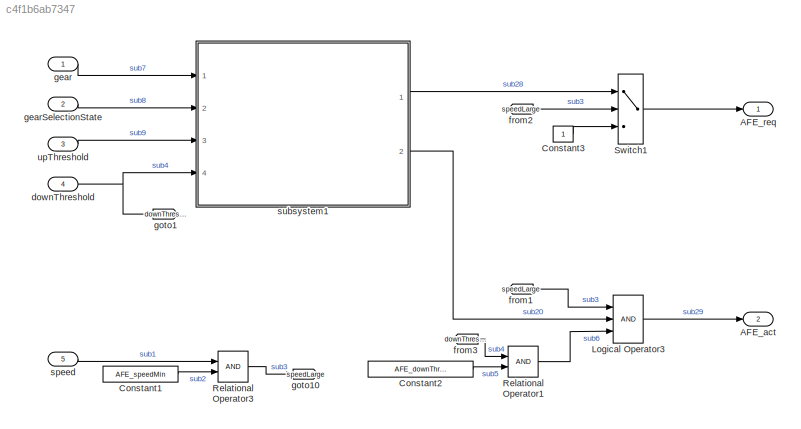
MODEL slx_c4f1b6ab7347
KIND model
CONFIG AbsTol = auto
CONFIG EnableMultiTasking = off
CONFIG FixedStep = fixedStepSize
CONFIG MaxStep = auto
CONFIG MinStep = auto
CONFIG RelTol = 1e-3
CONFIG SampleTimeConstraint = Unconstrained
CONFIG Solver = FixedStepAuto
CONFIG SolverName = FixedStepAuto
CONFIG StartTime = 0.0
CONFIG StopTime = 10.0
BLOCK [Outport] AFE_act
  IconDisplay = Port number
  OutDataTypeStr = boolean
  Port = 2
  PortDimensions = 1
  SamplingMode = Sample based
  SignalType = real
  VectorParamsAs1DForOutWhenUnconnected = off
BLOCK [Outport] AFE_req
  IconDisplay = Port number
  OutDataTypeStr = boolean
  PortDimensions = 1
  SamplingMode = Sample based
  SignalType = real
  VectorParamsAs1DForOutWhenUnconnected = off
BLOCK [Constant] Constant1
  Value = AFE_speedMin
BLOCK [Constant] Constant2
  Value = AFE_downThreshold
BLOCK [Constant] Constant3
BLOCK [Logic] Logical Operator3
  AllPortsSameDT = off
  Inputs = 3
  OutDataTypeStr = boolean
  Ports = [3, 1]
BLOCK [RelationalOperator] Relational Operator1
  InputSameDT = off
  OutDataTypeStr = boolean
  Ports = [2, 1]
BLOCK [RelationalOperator] Relational Operator3
  InputSameDT = off
  OutDataTypeStr = boolean
  Ports = [2, 1]
BLOCK [Switch] Switch1
  Criteria = u2 ~= 0
  InputSameDT = off
  SaturateOnIntegerOverflow = off
BLOCK [Inport] downThreshold
  IconDisplay = Port number
  Port = 4
BLOCK [From] from1
  AttributesFormatString = %<GotoTag>
  GotoTag = speedLarge
BLOCK [From] from2
  AttributesFormatString = %<GotoTag>
  GotoTag = speedLarge
BLOCK [From] from3
  AttributesFormatString = %<GotoTag>
  GotoTag = downThreshold
BLOCK [Inport] gear
  IconDisplay = Port number
BLOCK [Inport] gearSelectionState
  IconDisplay = Port number
  Port = 2
BLOCK [Goto] goto1
  AttributesFormatString = %<GotoTag>
  GotoTag = downThreshold
BLOCK [Goto] goto10
  AttributesFormatString = %<GotoTag>
  GotoTag = speedLarge
BLOCK [Inport] speed
  IconDisplay = Port number
  Port = 5
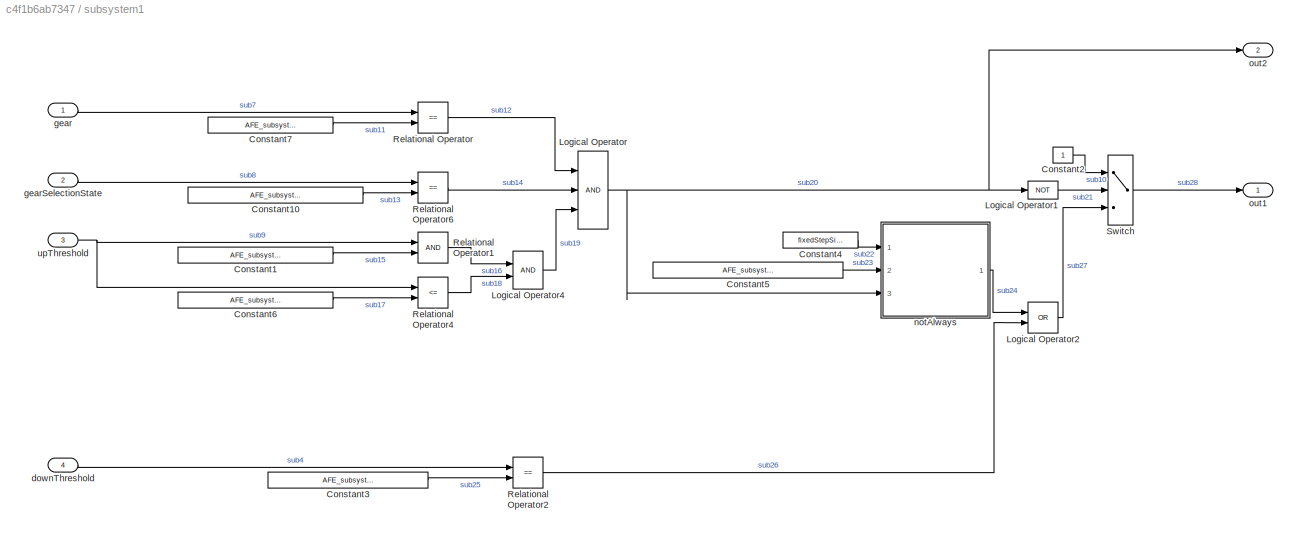
BLOCK [SubSystem] subsystem1
  Ports = [4, 2]
  RequestExecContextInheritance = off
BLOCK [Constant] subsystem1/Constant1
  Value = AFE_subsystem1_upThreshold1
BLOCK [Constant] subsystem1/Constant10
  Value = AFE_subsystem1_gearSelectionState
BLOCK [Constant] subsystem1/Constant2
BLOCK [Constant] subsystem1/Constant3
  Value = AFE_subsystem1_downThreshold
BLOCK [Constant] subsystem1/Constant4
  Value = fixedStepSize
BLOCK [Constant] subsystem1/Constant5
  Value = AFE_subsystem1_notAlwaysTimeHorizon
BLOCK [Constant] subsystem1/Constant6
  Value = AFE_subsystem1_upThreshold2
BLOCK [Constant] subsystem1/Constant7
  Value = AFE_subsystem1_gear
BLOCK [Logic] subsystem1/Logical Operator
  AllPortsSameDT = off
  Inputs = 3
  OutDataTypeStr = boolean
  Ports = [3, 1]
BLOCK [Logic] subsystem1/Logical Operator1
  AllPortsSameDT = off
  Inputs = 3
  Operator = NOT
  OutDataTypeStr = boolean
  Ports = [1, 1]
BLOCK [Logic] subsystem1/Logical Operator2
  AllPortsSameDT = off
  Operator = OR
  OutDataTypeStr = boolean
  Ports = [2, 1]
BLOCK [Logic] subsystem1/Logical Operator4
  AllPortsSameDT = off
  OutDataTypeStr = boolean
  Ports = [2, 1]
BLOCK [RelationalOperator] subsystem1/Relational Operator
  InputSameDT = off
  Operator = ==
  OutDataTypeStr = boolean
  Ports = [2, 1]
BLOCK [RelationalOperator] subsystem1/Relational Operator1
  InputSameDT = off
  OutDataTypeStr = boolean
  Ports = [2, 1]
BLOCK [RelationalOperator] subsystem1/Relational Operator2
  InputSameDT = off
  Operator = ==
  OutDataTypeStr = boolean
  Ports = [2, 1]
BLOCK [RelationalOperator] subsystem1/Relational Operator4
  InputSameDT = off
  Operator = <=
  OutDataTypeStr = boolean
  Ports = [2, 1]
BLOCK [RelationalOperator] subsystem1/Relational Operator6
  InputSameDT = off
  Operator = ==
  OutDataTypeStr = boolean
  Ports = [2, 1]
BLOCK [Switch] subsystem1/Switch
  Criteria = u2 ~= 0
  InputSameDT = off
  SaturateOnIntegerOverflow = off
BLOCK [Inport] subsystem1/downThreshold
  IconDisplay = Port number
  Port = 4
BLOCK [Inport] subsystem1/gear
  IconDisplay = Port number
BLOCK [Inport] subsystem1/gearSelectionState
  IconDisplay = Port number
  Port = 2
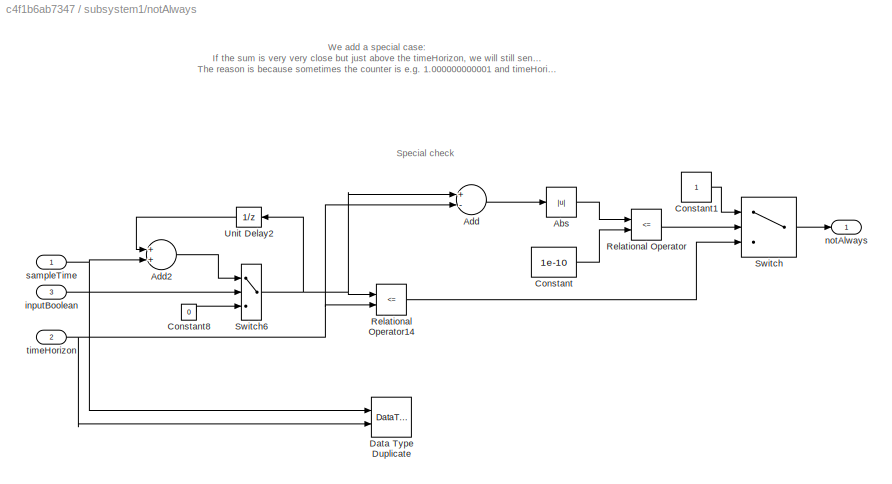
BLOCK [SubSystem] subsystem1/notAlways
  CopyFcn = set_param(gcbh,'LinkStatus','none');
  Ports = [3, 1]
  RequestExecContextInheritance = off
BLOCK [Abs] subsystem1/notAlways/Abs
  SaturateOnIntegerOverflow = off
BLOCK [Sum] subsystem1/notAlways/Add
  InputSameDT = off
  Inputs = +-
  OutDataTypeStr = Inherit: Inherit via internal rule
  Ports = [2, 1]
  SaturateOnIntegerOverflow = off
BLOCK [Sum] subsystem1/notAlways/Add2
  InputSameDT = off
  OutDataTypeStr = Inherit: Inherit via internal rule
  Ports = [2, 1]
  SaturateOnIntegerOverflow = off
BLOCK [Constant] subsystem1/notAlways/Constant
  Value = 1e-10
BLOCK [Constant] subsystem1/notAlways/Constant1
  OutDataTypeStr = boolean
BLOCK [Constant] subsystem1/notAlways/Constant8
  OutDataTypeStr = Inherit: Inherit via back propagation
  Value = 0
BLOCK [DataTypeDuplicate] subsystem1/notAlways/Data Type Duplicate
  Ports = [2]
BLOCK [RelationalOperator] subsystem1/notAlways/Relational Operator
  InputSameDT = off
  Operator = <=
  OutDataTypeStr = boolean
  Ports = [2, 1]
  RndMeth = Simplest
BLOCK [RelationalOperator] subsystem1/notAlways/Relational Operator14
  InputSameDT = off
  Operator = <=
  OutDataTypeStr = boolean
  Ports = [2, 1]
BLOCK [Switch] subsystem1/notAlways/Switch
  Criteria = u2 ~= 0
  InputSameDT = off
  SaturateOnIntegerOverflow = off
BLOCK [Switch] subsystem1/notAlways/Switch6
  Criteria = u2 ~= 0
  InputSameDT = off
  SaturateOnIntegerOverflow = off
BLOCK [UnitDelay] subsystem1/notAlways/Unit Delay2
  HasFrameUpgradeWarning = on
  SampleTime = -1
BLOCK [Inport] subsystem1/notAlways/inputBoolean
  IconDisplay = Port number
  Port = 3
BLOCK [Outport] subsystem1/notAlways/notAlways
  IconDisplay = Port number
  VectorParamsAs1DForOutWhenUnconnected = off
BLOCK [Inport] subsystem1/notAlways/sampleTime
  IconDisplay = Port number
BLOCK [Inport] subsystem1/notAlways/timeHorizon
  IconDisplay = Port number
  Port = 2
BLOCK [Outport] subsystem1/out1
  IconDisplay = Port number
  VectorParamsAs1DForOutWhenUnconnected = off
BLOCK [Outport] subsystem1/out2
  IconDisplay = Port number
  Port = 2
  VectorParamsAs1DForOutWhenUnconnected = off
BLOCK [Inport] subsystem1/upThreshold
  IconDisplay = Port number
  Port = 3
BLOCK [Inport] upThreshold
  IconDisplay = Port number
  Port = 3
ANNOTATION subsystem1/notAlways: We add a special case: If the sum is very very close but just above the timeHorizon, we will still send TRUE as output! The reason is because sometimes the counter is e.g. 1.000000000001 and timeHorizon is 1, which is essentially just a floating point error.
ANNOTATION subsystem1/notAlways: Special check
LINE Constant1:1 -> Relational Operator3:2
LINE Constant2:1 -> Relational Operator1:2
LINE Constant3:1 -> Switch1:3
LINE Logical Operator3:1 -> AFE_act:1
LINE Relational Operator1:1 -> Logical Operator3:3
LINE Relational Operator3:1 -> goto10:1
LINE Switch1:1 -> AFE_req:1
NET downThreshold:1 -> goto1:1, subsystem1:4
LINE from1:1 -> Logical Operator3:1
LINE from2:1 -> Switch1:2
LINE from3:1 -> Relational Operator1:1
LINE gear:1 -> subsystem1:1
LINE gearSelectionState:1 -> subsystem1:2
LINE speed:1 -> Relational Operator3:1
LINE subsystem1/Constant10:1 -> subsystem1/Relational Operator6:2
LINE subsystem1/Constant1:1 -> subsystem1/Relational Operator1:2
LINE subsystem1/Constant2:1 -> subsystem1/Switch:1
LINE subsystem1/Constant3:1 -> subsystem1/Relational Operator2:2
LINE subsystem1/Constant4:1 -> subsystem1/notAlways:1
LINE subsystem1/Constant5:1 -> subsystem1/notAlways:2
LINE subsystem1/Constant6:1 -> subsystem1/Relational Operator4:2
LINE subsystem1/Constant7:1 -> subsystem1/Relational Operator:2
LINE subsystem1/Logical Operator1:1 -> subsystem1/Switch:2
LINE subsystem1/Logical Operator2:1 -> subsystem1/Switch:3
LINE subsystem1/Logical Operator4:1 -> subsystem1/Logical Operator:3
NET subsystem1/Logical Operator:1 -> subsystem1/Logical Operator1:1, subsystem1/notAlways:3, subsystem1/out2:1
LINE subsystem1/Relational Operator1:1 -> subsystem1/Logical Operator4:1
LINE subsystem1/Relational Operator2:1 -> subsystem1/Logical Operator2:2
LINE subsystem1/Relational Operator4:1 -> subsystem1/Logical Operator4:2
LINE subsystem1/Relational Operator6:1 -> subsystem1/Logical Operator:2
LINE subsystem1/Relational Operator:1 -> subsystem1/Logical Operator:1
LINE subsystem1/Switch:1 -> subsystem1/out1:1
LINE subsystem1/downThreshold:1 -> subsystem1/Relational Operator2:1
LINE subsystem1/gear:1 -> subsystem1/Relational Operator:1
LINE subsystem1/gearSelectionState:1 -> subsystem1/Relational Operator6:1
LINE subsystem1/notAlways/Abs:1 -> subsystem1/notAlways/Relational Operator:1
LINE subsystem1/notAlways/Add2:1 -> subsystem1/notAlways/Switch6:1
LINE subsystem1/notAlways/Add:1 -> subsystem1/notAlways/Abs:1
LINE subsystem1/notAlways/Constant1:1 -> subsystem1/notAlways/Switch:1
LINE subsystem1/notAlways/Constant8:1 -> subsystem1/notAlways/Switch6:3
LINE subsystem1/notAlways/Constant:1 -> subsystem1/notAlways/Relational Operator:2
LINE subsystem1/notAlways/Relational Operator14:1 -> subsystem1/notAlways/Switch:3
LINE subsystem1/notAlways/Relational Operator:1 -> subsystem1/notAlways/Switch:2
NET subsystem1/notAlways/Switch6:1 -> subsystem1/notAlways/Add:1, subsystem1/notAlways/Relational Operator14:1, subsystem1/notAlways/Unit Delay2:1
LINE subsystem1/notAlways/Switch:1 -> subsystem1/notAlways/notAlways:1
LINE subsystem1/notAlways/Unit Delay2:1 -> subsystem1/notAlways/Add2:1
LINE subsystem1/notAlways/inputBoolean:1 -> subsystem1/notAlways/Switch6:2
NET subsystem1/notAlways/sampleTime:1 -> subsystem1/notAlways/Add2:2, subsystem1/notAlways/Data Type Duplicate:1
NET subsystem1/notAlways/timeHorizon:1 -> subsystem1/notAlways/Add:2, subsystem1/notAlways/Data Type Duplicate:2, subsystem1/notAlways/Relational Operator14:2
LINE subsystem1/notAlways:1 -> subsystem1/Logical Operator2:1
NET subsystem1/upThreshold:1 -> subsystem1/Relational Operator1:1, subsystem1/Relational Operator4:1
LINE subsystem1:1 -> Switch1:1
LINE subsystem1:2 -> Logical Operator3:2
LINE upThreshold:1 -> subsystem1:3
note: NET lines group one-source signal fan-out (src -> all destinations, sorted); 1:1 wires keep LINE
